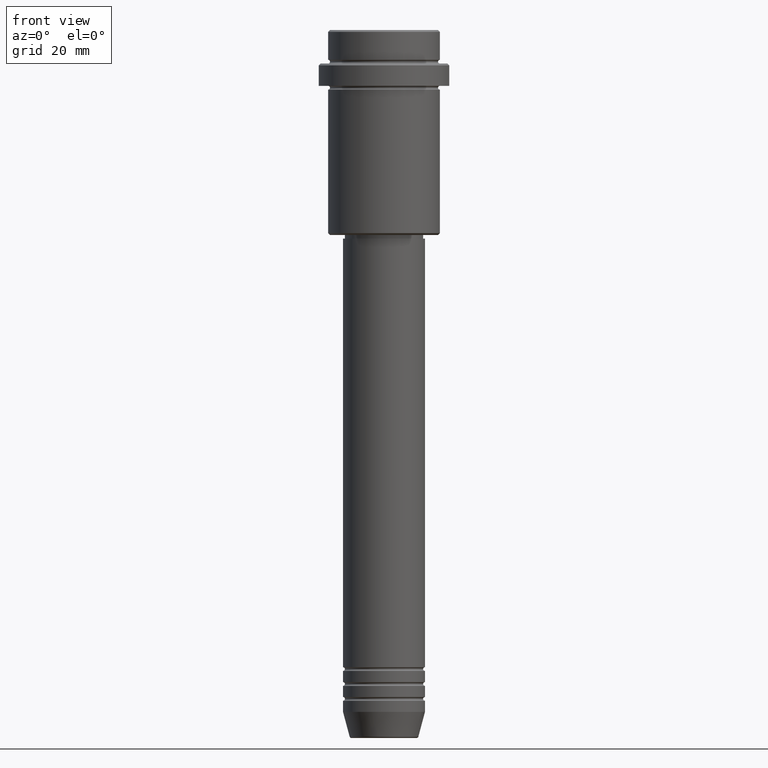
[diagram: clean part render]
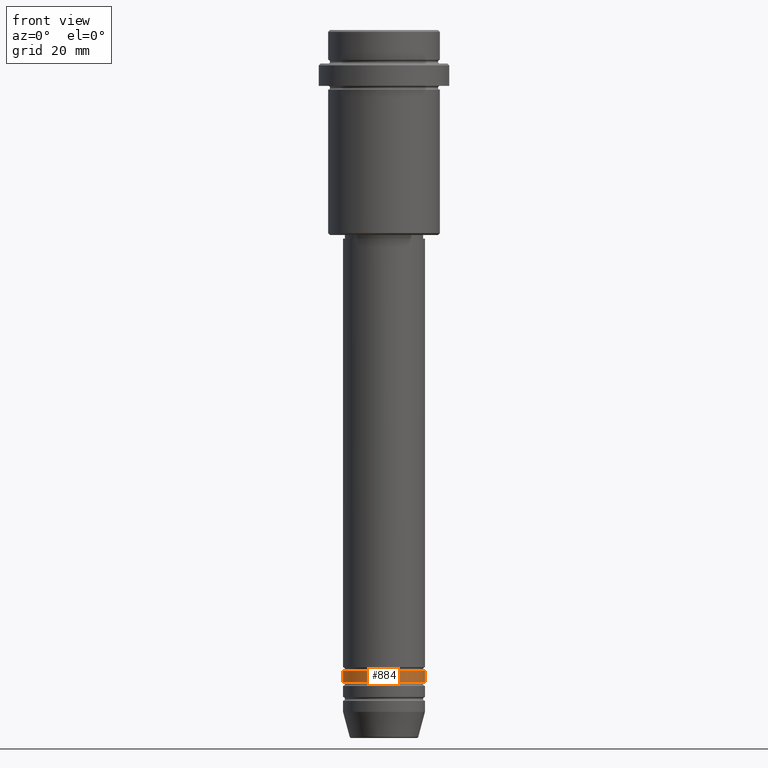
[diagram: same view with one face highlighted and labeled with its STEP entity id]
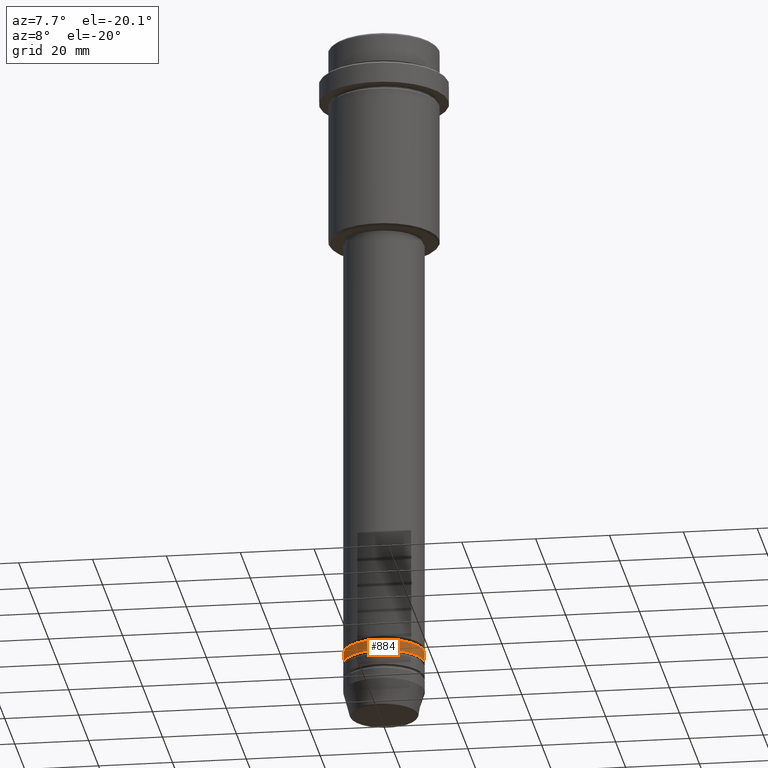
[diagram: same view with one face highlighted and labeled with its STEP entity id]
A machine part, front view. The second image highlights one B-rep face of the part: STEP entity #884.
A second angle (auxiliary view) of the same face is appended — the face is thin or edge-on in the first view.
In plain terms, the highlighted cylindrical surface (partial cylindrical patch) has radius 11 mm, axis along (-0, -0, 1).
Its self-contained STEP definition (entity closure, byte-faithful):
#20 = CARTESIAN_POINT ( 'NONE',  ( 11.00000000000000000, 0.000000000000000000, -171.9999999999999147 ) ) ;
#33 = CARTESIAN_POINT ( 'NONE',  ( 0.000000000000000000, 0.000000000000000000, -171.9999999999999147 ) ) ;
#47 = CARTESIAN_POINT ( 'NONE',  ( -11.00000000000000000, 1.347111479062088405E-15, -174.9999999999999147 ) ) ;
#77 = VERTEX_POINT ( 'NONE', #47 ) ;
#107 = AXIS2_PLACEMENT_3D ( 'NONE', #1073, #113, #987 ) ;
#113 = DIRECTION ( 'NONE',  ( -0.000000000000000000, -0.000000000000000000, 1.000000000000000000 ) ) ;
#124 = VERTEX_POINT ( 'NONE', #1163 ) ;
#240 = LINE ( 'NONE', #803, #1014 ) ;
#353 = CARTESIAN_POINT ( 'NONE',  ( 0.000000000000000000, 0.000000000000000000, 0.000000000000000000 ) ) ;
#379 = ORIENTED_EDGE ( 'NONE', *, *, #425, .F. ) ;
#384 = CARTESIAN_POINT ( 'NONE',  ( -11.00000000000000000, 1.347111479062088405E-15, 0.000000000000000000 ) ) ;
#425 = EDGE_CURVE ( 'NONE', #615, #862, #572, .T. ) ;
#460 = EDGE_LOOP ( 'NONE', ( #646, #499, #755, #379 ) ) ;
#499 = ORIENTED_EDGE ( 'NONE', *, *, #701, .T. ) ;
#572 = CIRCLE ( 'NONE', #681, 11.00000000000000000 ) ;
#575 = DIRECTION ( 'NONE',  ( -0.000000000000000000, -0.000000000000000000, 1.000000000000000000 ) ) ;
#615 = VERTEX_POINT ( 'NONE', #1191 ) ;
#646 = ORIENTED_EDGE ( 'NONE', *, *, #951, .F. ) ;
#681 = AXIS2_PLACEMENT_3D ( 'NONE', #33, #910, #914 ) ;
#701 = EDGE_CURVE ( 'NONE', #77, #124, #815, .T. ) ;
#755 = ORIENTED_EDGE ( 'NONE', *, *, #872, .T. ) ;
#784 = DIRECTION ( 'NONE',  ( -0.000000000000000000, -0.000000000000000000, 1.000000000000000000 ) ) ;
#796 = AXIS2_PLACEMENT_3D ( 'NONE', #353, #784, #1340 ) ;
#803 = CARTESIAN_POINT ( 'NONE',  ( 11.00000000000000000, 0.000000000000000000, 0.000000000000000000 ) ) ;
#815 = CIRCLE ( 'NONE', #107, 11.00000000000000000 ) ;
#862 = VERTEX_POINT ( 'NONE', #20 ) ;
#872 = EDGE_CURVE ( 'NONE', #124, #862, #240, .T. ) ;
#884 = ADVANCED_FACE ( 'NONE', ( #909 ), #998, .T. ) ;
#909 = FACE_OUTER_BOUND ( 'NONE', #460, .T. ) ;
#910 = DIRECTION ( 'NONE',  ( -0.000000000000000000, -0.000000000000000000, 1.000000000000000000 ) ) ;
#914 = DIRECTION ( 'NONE',  ( 1.000000000000000000, 0.000000000000000000, 0.000000000000000000 ) ) ;
#949 = VECTOR ( 'NONE', #1360, 1000.000000000000000 ) ;
#951 = EDGE_CURVE ( 'NONE', #77, #615, #1156, .T. ) ;
#987 = DIRECTION ( 'NONE',  ( 1.000000000000000000, 0.000000000000000000, 0.000000000000000000 ) ) ;
#998 = CYLINDRICAL_SURFACE ( 'NONE', #796, 11.00000000000000000 ) ;
#1014 = VECTOR ( 'NONE', #575, 1000.000000000000000 ) ;
#1073 = CARTESIAN_POINT ( 'NONE',  ( 0.000000000000000000, 0.000000000000000000, -174.9999999999999147 ) ) ;
#1156 = LINE ( 'NONE', #384, #949 ) ;
#1163 = CARTESIAN_POINT ( 'NONE',  ( 11.00000000000000000, 0.000000000000000000, -174.9999999999999147 ) ) ;
#1191 = CARTESIAN_POINT ( 'NONE',  ( -11.00000000000000000, 1.347111479062088405E-15, -171.9999999999999147 ) ) ;
#1340 = DIRECTION ( 'NONE',  ( 1.000000000000000000, 0.000000000000000000, 0.000000000000000000 ) ) ;
#1360 = DIRECTION ( 'NONE',  ( -0.000000000000000000, -0.000000000000000000, 1.000000000000000000 ) ) ;